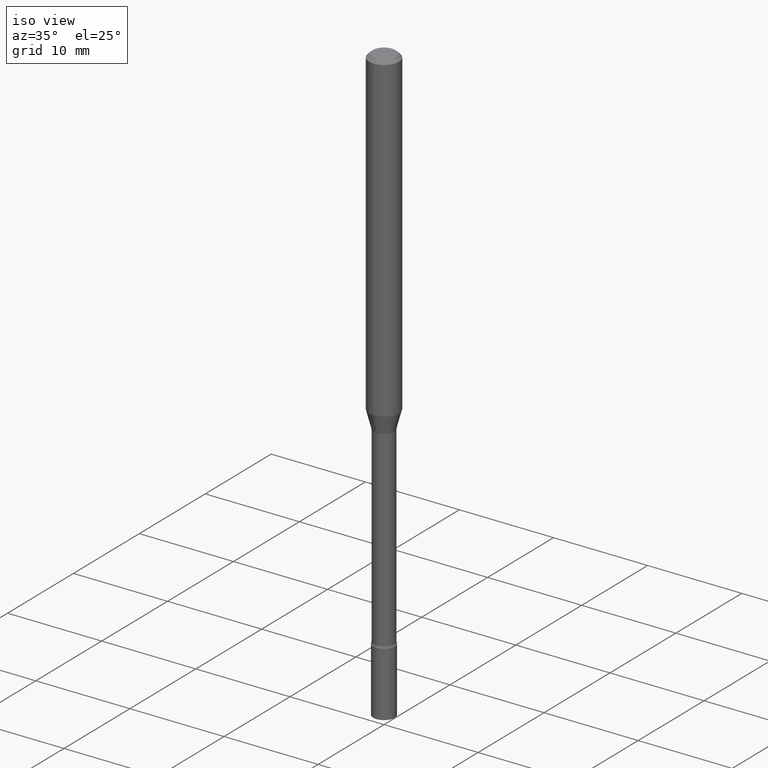
[diagram: clean part render]
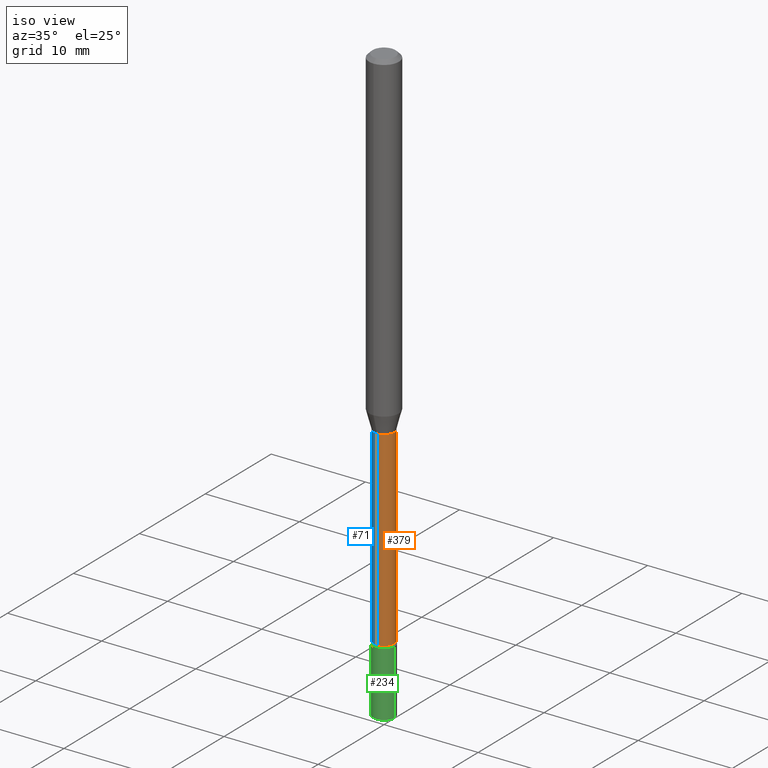
[diagram: same view with three faces highlighted in distinct colors, each labeled with its STEP entity id]
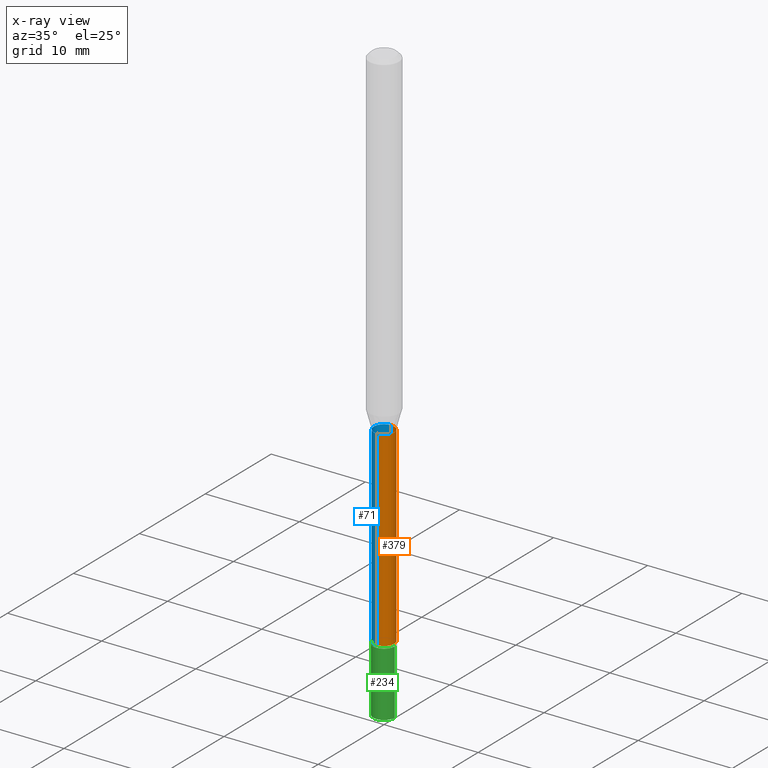
[diagram: x-ray of the same camera — body ghosted, the three highlighted faces saturated]
A machine part, iso view with three faces highlighted in distinct colors.
The next image is the same camera in x-ray (body ghosted, the three faces saturated) — at least one of them is partly hidden behind the body in this view.
Their STEP definitions:

[orange] entity #379 — the highlighted cylindrical surface (edge-blend (fillet) strip) has radius 1.0744 mm, axis along (-0, 0, 1).
#5 = CARTESIAN_POINT ( 'NONE',  ( 3.005595772265770868E-16, 0.04229999999999502908, -1.421974787463811563 ) ) ;
#11 = CARTESIAN_POINT ( 'NONE',  ( 3.477279961957444351E-29, -4.964963155602911741E-15, -1.421974787463811118 ) ) ;
#34 = CARTESIAN_POINT ( 'NONE',  ( -2.953793212660942943E-16, -0.04230000000000496557, -1.421974787463810896 ) ) ;
#63 = EDGE_CURVE ( 'NONE', #134, #497, #144, .T. ) ;
#110 = DIRECTION ( 'NONE',  ( -2.445387915885210370E-29, 3.491597178356629868E-15, 1.000000000000000000 ) ) ;
#114 = AXIS2_PLACEMENT_3D ( 'NONE', #11, #486, #281 ) ;
#127 = ORIENTED_EDGE ( 'NONE', *, *, #310, .F. ) ;
#129 = ORIENTED_EDGE ( 'NONE', *, *, #511, .F. ) ;
#134 = VERTEX_POINT ( 'NONE', #380 ) ;
#142 = LINE ( 'NONE', #336, #186 ) ;
#144 = LINE ( 'NONE', #459, #196 ) ;
#151 = EDGE_LOOP ( 'NONE', ( #286, #345, #129, #127 ) ) ;
#154 = DIRECTION ( 'NONE',  ( -6.982962677686266711E-15, -1.000000000000000000, 6.458269488567978448E-15 ) ) ;
#186 = VECTOR ( 'NONE', #502, 39.37007874015748143 ) ;
#189 = CARTESIAN_POINT ( 'NONE',  ( 5.432220289863311554E-29, -7.756284764919363246E-15, -2.221414547187247290 ) ) ;
#196 = VECTOR ( 'NONE', #250, 39.37007874015748143 ) ;
#238 = EDGE_CURVE ( 'NONE', #291, #134, #282, .T. ) ;
#250 = DIRECTION ( 'NONE',  ( -2.445387915885210370E-29, 3.491597178356629473E-15, 1.000000000000000000 ) ) ;
#251 = VERTEX_POINT ( 'NONE', #34 ) ;
#263 = DIRECTION ( 'NONE',  ( -6.982962677686266711E-15, -1.000000000000000000, 3.491597178356630262E-15 ) ) ;
#281 = DIRECTION ( 'NONE',  ( -6.982962677686266711E-15, -1.000000000000000000, 6.458269488567998169E-15 ) ) ;
#282 = CIRCLE ( 'NONE', #374, 0.04230000000000012916 ) ;
#286 = ORIENTED_EDGE ( 'NONE', *, *, #238, .T. ) ;
#291 = VERTEX_POINT ( 'NONE', #435 ) ;
#310 = EDGE_CURVE ( 'NONE', #291, #251, #142, .T. ) ;
#333 = AXIS2_PLACEMENT_3D ( 'NONE', #513, #110, #263 ) ;
#336 = CARTESIAN_POINT ( 'NONE',  ( -2.953793212661295465E-16, -0.04230000000000006671, 1.476945606444856848E-16 ) ) ;
#345 = ORIENTED_EDGE ( 'NONE', *, *, #63, .T. ) ;
#350 = FACE_OUTER_BOUND ( 'NONE', #151, .T. ) ;
#374 = AXIS2_PLACEMENT_3D ( 'NONE', #189, #386, #154 ) ;
#379 = ADVANCED_FACE ( 'NONE', ( #350 ), #507, .T. ) ;
#380 = CARTESIAN_POINT ( 'NONE',  ( 3.101519041593385169E-16, 0.04229999999999237148, -2.221414547187247734 ) ) ;
#386 = DIRECTION ( 'NONE',  ( -2.445387915885210370E-29, 3.491597178356629868E-15, 1.000000000000000000 ) ) ;
#427 = CIRCLE ( 'NONE', #114, 0.04229999999999999732 ) ;
#435 = CARTESIAN_POINT ( 'NONE',  ( -2.953793212660756081E-16, -0.04230000000000788685, -2.221414547187247290 ) ) ;
#459 = CARTESIAN_POINT ( 'NONE',  ( 3.005595772265228033E-16, 0.04230000000000006671, -1.476945606444856848E-16 ) ) ;
#486 = DIRECTION ( 'NONE',  ( -2.445387915885210370E-29, 3.491597178356629868E-15, 1.000000000000000000 ) ) ;
#497 = VERTEX_POINT ( 'NONE', #5 ) ;
#502 = DIRECTION ( 'NONE',  ( -2.445387915885210370E-29, 3.491597178356629473E-15, 1.000000000000000000 ) ) ;
#507 = CYLINDRICAL_SURFACE ( 'NONE', #333, 0.04230000000000006671 ) ;
#511 = EDGE_CURVE ( 'NONE', #251, #497, #427, .T. ) ;
#513 = CARTESIAN_POINT ( 'NONE',  ( 0.000000000000000000, 0.000000000000000000, 0.000000000000000000 ) ) ;

[blue] entity #71 — the highlighted cylindrical surface (edge-blend (fillet) strip) has radius 1.0744 mm, axis along (-0, 0, 1).
#5 = CARTESIAN_POINT ( 'NONE',  ( 3.005595772265770868E-16, 0.04229999999999502908, -1.421974787463811563 ) ) ;
#34 = CARTESIAN_POINT ( 'NONE',  ( -2.953793212660942943E-16, -0.04230000000000496557, -1.421974787463810896 ) ) ;
#63 = EDGE_CURVE ( 'NONE', #134, #497, #144, .T. ) ;
#67 = DIRECTION ( 'NONE',  ( -2.445387915885210370E-29, 3.491597178356629868E-15, 1.000000000000000000 ) ) ;
#71 = ADVANCED_FACE ( 'NONE', ( #492 ), #207, .T. ) ;
#87 = AXIS2_PLACEMENT_3D ( 'NONE', #271, #67, #429 ) ;
#105 = CARTESIAN_POINT ( 'NONE',  ( 5.432220289863311554E-29, -7.756284764919363246E-15, -2.221414547187247290 ) ) ;
#134 = VERTEX_POINT ( 'NONE', #380 ) ;
#142 = LINE ( 'NONE', #336, #186 ) ;
#144 = LINE ( 'NONE', #459, #196 ) ;
#147 = EDGE_CURVE ( 'NONE', #497, #251, #325, .T. ) ;
#166 = AXIS2_PLACEMENT_3D ( 'NONE', #105, #411, #254 ) ;
#176 = ORIENTED_EDGE ( 'NONE', *, *, #328, .T. ) ;
#186 = VECTOR ( 'NONE', #502, 39.37007874015748143 ) ;
#196 = VECTOR ( 'NONE', #250, 39.37007874015748143 ) ;
#207 = CYLINDRICAL_SURFACE ( 'NONE', #317, 0.04230000000000006671 ) ;
#245 = ORIENTED_EDGE ( 'NONE', *, *, #63, .F. ) ;
#250 = DIRECTION ( 'NONE',  ( -2.445387915885210370E-29, 3.491597178356629473E-15, 1.000000000000000000 ) ) ;
#251 = VERTEX_POINT ( 'NONE', #34 ) ;
#254 = DIRECTION ( 'NONE',  ( -6.982962677686266711E-15, -1.000000000000000000, 6.458269488567978448E-15 ) ) ;
#258 = ORIENTED_EDGE ( 'NONE', *, *, #147, .F. ) ;
#271 = CARTESIAN_POINT ( 'NONE',  ( 3.477279961957444351E-29, -4.964963155602911741E-15, -1.421974787463811118 ) ) ;
#287 = CARTESIAN_POINT ( 'NONE',  ( 0.000000000000000000, 0.000000000000000000, 0.000000000000000000 ) ) ;
#290 = DIRECTION ( 'NONE',  ( -6.982962677686266711E-15, -1.000000000000000000, 3.491597178356630262E-15 ) ) ;
#291 = VERTEX_POINT ( 'NONE', #435 ) ;
#310 = EDGE_CURVE ( 'NONE', #291, #251, #142, .T. ) ;
#317 = AXIS2_PLACEMENT_3D ( 'NONE', #287, #488, #290 ) ;
#325 = CIRCLE ( 'NONE', #87, 0.04229999999999999732 ) ;
#328 = EDGE_CURVE ( 'NONE', #134, #291, #480, .T. ) ;
#336 = CARTESIAN_POINT ( 'NONE',  ( -2.953793212661295465E-16, -0.04230000000000006671, 1.476945606444856848E-16 ) ) ;
#370 = ORIENTED_EDGE ( 'NONE', *, *, #310, .T. ) ;
#380 = CARTESIAN_POINT ( 'NONE',  ( 3.101519041593385169E-16, 0.04229999999999237148, -2.221414547187247734 ) ) ;
#411 = DIRECTION ( 'NONE',  ( -2.445387915885210370E-29, 3.491597178356629868E-15, 1.000000000000000000 ) ) ;
#429 = DIRECTION ( 'NONE',  ( -6.982962677686266711E-15, -1.000000000000000000, 6.458269488567998169E-15 ) ) ;
#435 = CARTESIAN_POINT ( 'NONE',  ( -2.953793212660756081E-16, -0.04230000000000788685, -2.221414547187247290 ) ) ;
#451 = EDGE_LOOP ( 'NONE', ( #245, #176, #370, #258 ) ) ;
#459 = CARTESIAN_POINT ( 'NONE',  ( 3.005595772265228033E-16, 0.04230000000000006671, -1.476945606444856848E-16 ) ) ;
#480 = CIRCLE ( 'NONE', #166, 0.04230000000000012916 ) ;
#488 = DIRECTION ( 'NONE',  ( -2.445387915885210370E-29, 3.491597178356629868E-15, 1.000000000000000000 ) ) ;
#492 = FACE_OUTER_BOUND ( 'NONE', #451, .T. ) ;
#497 = VERTEX_POINT ( 'NONE', #5 ) ;
#502 = DIRECTION ( 'NONE',  ( -2.445387915885210370E-29, 3.491597178356629473E-15, 1.000000000000000000 ) ) ;

[green] entity #234 — the highlighted cylindrical surface (edge-blend (fillet) strip) has radius 1.143 mm, axis along (-0, 0, 1).
#2 = CARTESIAN_POINT ( 'NONE',  ( 0.04499999999999999833, -3.142333204958819823E-16, 2.194279549108170967E-30 ) ) ;
#18 = CARTESIAN_POINT ( 'NONE',  ( -0.04499999999999999833, -7.937609135271993890E-15, -2.500000000000000000 ) ) ;
#25 = FACE_OUTER_BOUND ( 'NONE', #361, .T. ) ;
#27 = EDGE_CURVE ( 'NONE', #88, #299, #133, .T. ) ;
#37 = CIRCLE ( 'NONE', #442, 0.04499999999999999833 ) ;
#46 = EDGE_CURVE ( 'NONE', #478, #472, #356, .T. ) ;
#51 = CARTESIAN_POINT ( 'NONE',  ( -0.04499999999999999833, 3.197442310920450718E-16, -2.213520790614707560E-30 ) ) ;
#55 = DIRECTION ( 'NONE',  ( -2.445468806185136877E-29, 3.491481338843145188E-15, 1.000000000000000000 ) ) ;
#56 = AXIS2_PLACEMENT_3D ( 'NONE', #232, #477, #119 ) ;
#88 = VERTEX_POINT ( 'NONE', #18 ) ;
#106 = EDGE_CURVE ( 'NONE', #88, #478, #37, .T. ) ;
#111 = ORIENTED_EDGE ( 'NONE', *, *, #289, .F. ) ;
#113 = DIRECTION ( 'NONE',  ( 1.000000000000000000, -6.982962677686246989E-15, 0.000000000000000000 ) ) ;
#117 = DIRECTION ( 'NONE',  ( -2.445468806185136597E-29, 3.491481338843145583E-15, 1.000000000000000000 ) ) ;
#119 = DIRECTION ( 'NONE',  ( 1.000000000000000000, -6.982962677686269077E-15, 0.000000000000000000 ) ) ;
#128 = CARTESIAN_POINT ( 'NONE',  ( 0.04499999999999999833, -9.042936667603745051E-15, -2.500000000000000000 ) ) ;
#133 = LINE ( 'NONE', #51, #407 ) ;
#141 = DIRECTION ( 'NONE',  ( -2.445468806185136597E-29, 3.491481338843145583E-15, 1.000000000000000000 ) ) ;
#149 = CYLINDRICAL_SURFACE ( 'NONE', #275, 0.04499999999999999833 ) ;
#162 = ORIENTED_EDGE ( 'NONE', *, *, #46, .T. ) ;
#167 = DIRECTION ( 'NONE',  ( -2.445468806185136877E-29, 3.491481338843145188E-15, 1.000000000000000000 ) ) ;
#188 = CARTESIAN_POINT ( 'NONE',  ( 6.113672015462842613E-29, -8.728703347107864943E-15, -2.500000000000000000 ) ) ;
#232 = CARTESIAN_POINT ( 'NONE',  ( 5.453395437792854252E-29, -7.786003385620215150E-15, -2.229999999999999982 ) ) ;
#234 = ADVANCED_FACE ( 'NONE', ( #25 ), #149, .T. ) ;
#257 = DIRECTION ( 'NONE',  ( 1.000000000000000000, -6.982962677686266711E-15, 4.876176775795935793E-29 ) ) ;
#275 = AXIS2_PLACEMENT_3D ( 'NONE', #495, #141, #257 ) ;
#289 = EDGE_CURVE ( 'NONE', #299, #472, #504, .T. ) ;
#299 = VERTEX_POINT ( 'NONE', #394 ) ;
#356 = LINE ( 'NONE', #2, #418 ) ;
#359 = CARTESIAN_POINT ( 'NONE',  ( 0.04499999999999999833, -8.100236706116096837E-15, -2.229999999999999982 ) ) ;
#361 = EDGE_LOOP ( 'NONE', ( #402, #446, #162, #111 ) ) ;
#394 = CARTESIAN_POINT ( 'NONE',  ( -0.04499999999999999833, -7.937609135271993890E-15, -2.229999999999999982 ) ) ;
#402 = ORIENTED_EDGE ( 'NONE', *, *, #27, .F. ) ;
#407 = VECTOR ( 'NONE', #55, 39.37007874015748143 ) ;
#418 = VECTOR ( 'NONE', #167, 39.37007874015748143 ) ;
#442 = AXIS2_PLACEMENT_3D ( 'NONE', #188, #117, #113 ) ;
#446 = ORIENTED_EDGE ( 'NONE', *, *, #106, .T. ) ;
#472 = VERTEX_POINT ( 'NONE', #359 ) ;
#477 = DIRECTION ( 'NONE',  ( -2.445468806185136597E-29, 3.491481338843145583E-15, 1.000000000000000000 ) ) ;
#478 = VERTEX_POINT ( 'NONE', #128 ) ;
#495 = CARTESIAN_POINT ( 'NONE',  ( 0.000000000000000000, 0.000000000000000000, 0.000000000000000000 ) ) ;
#504 = CIRCLE ( 'NONE', #56, 0.04499999999999999833 ) ;